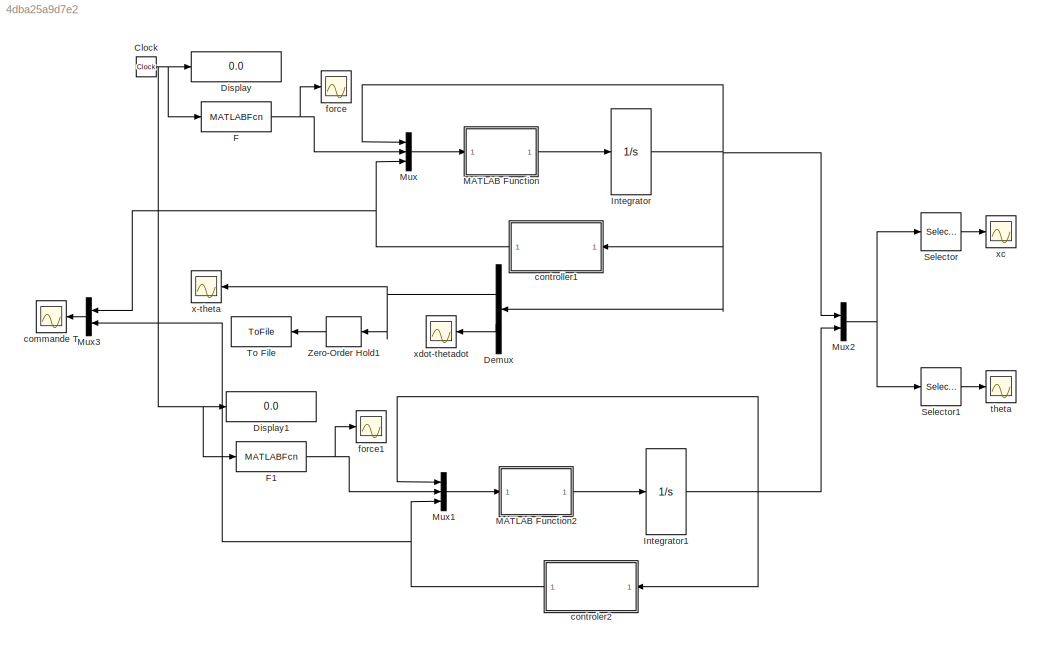
MODEL slx_4dba25a9d7e2
KIND model
CONFIG AbsTol = auto
CONFIG EnableMultiTasking = off
CONFIG FixedStep = auto
CONFIG MaxStep = auto
CONFIG MinStep = auto
CONFIG RelTol = 1e-3
CONFIG SampleTimeConstraint = Unconstrained
CONFIG SolverName = VariableStepAuto
CONFIG StartTime = 0.0
CONFIG StopTime = 50
BLOCK [Clock] Clock
BLOCK [Demux] Demux
  Outputs = 2
BLOCK [Display] Display
  Decimation = 1
BLOCK [Display] Display1
  Decimation = 1
BLOCK [MATLABFcn] F
  MATLABFcn = Force
  OutputDimensions = 1
BLOCK [MATLABFcn] F1
  MATLABFcn = Force1
  OutputDimensions = 1
BLOCK [Integrator] Integrator
  InitialCondition = [0.1;0;1e-8;0]
BLOCK [Integrator] Integrator1
  InitialCondition = [0.1;0;1e-8;0]
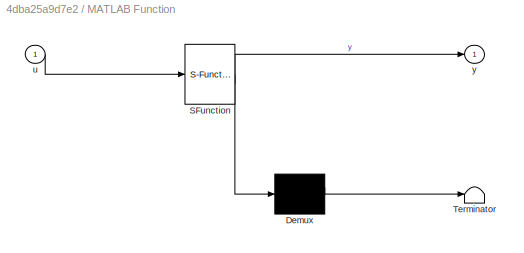
BLOCK [SubSystem] MATLAB Function
  ErrorFcn = Stateflow.Translate.translate
  PermitHierarchicalResolution = ExplicitOnly
  SFBlockType = MATLAB Function
  TreatAsAtomicUnit = on
BLOCK [Demux] MATLAB Function/ Demux 
  Outputs = 1
BLOCK [S-Function] MATLAB Function/ SFunction 
  EnableBusSupport = on
  FunctionName = sf_sfun
  PortCounts = [1 2]
  SFcnIsStateOwnerBlock = off
  SFunctionDeploymentMode = off
  Tag = Stateflow S-Function 2
BLOCK [Terminator] MATLAB Function/ Terminator 
BLOCK [Inport] MATLAB Function/u
BLOCK [Outport] MATLAB Function/y
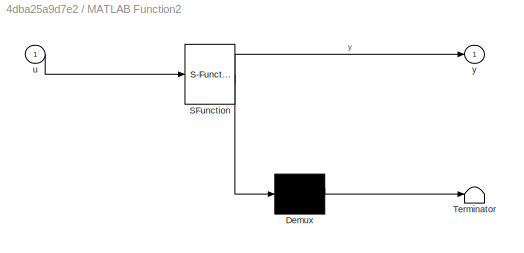
BLOCK [SubSystem] MATLAB Function2
  ErrorFcn = Stateflow.Translate.translate
  PermitHierarchicalResolution = ExplicitOnly
  SFBlockType = MATLAB Function
  TreatAsAtomicUnit = on
BLOCK [Demux] MATLAB Function2/ Demux 
  Outputs = 1
BLOCK [S-Function] MATLAB Function2/ SFunction 
  EnableBusSupport = on
  FunctionName = sf_sfun
  PortCounts = [1 2]
  SFcnIsStateOwnerBlock = off
  SFunctionDeploymentMode = off
  Tag = Stateflow S-Function 3
BLOCK [Terminator] MATLAB Function2/ Terminator 
BLOCK [Inport] MATLAB Function2/u
BLOCK [Outport] MATLAB Function2/y
BLOCK [Mux] Mux
  DisplayOption = bar
  Inputs = 3
BLOCK [Mux] Mux1
  DisplayOption = bar
  Inputs = 3
BLOCK [Mux] Mux2
  DisplayOption = bar
  Inputs = 2
BLOCK [Mux] Mux3
  DisplayOption = bar
  Inputs = 2
  NameLocation = top
BLOCK [Selector] Selector
  IndexOptions = Index vector (dialog)
  Indices = [1 5]
  InputPortWidth = 8
  OutputSizes = 1
BLOCK [Selector] Selector1
  IndexOptions = Index vector (dialog)
  Indices = [3 7]
  InputPortWidth = 8
  OutputSizes = 1
BLOCK [ToFile] To File
  Filename = xtheta.mat
  SampleTime = 0.01
  SaveFormat = Timeseries
BLOCK [ZeroOrderHold] Zero-Order Hold1
  SampleTime = 0.01
BLOCK [Scope] commande T
  Floating = off
  NameLocation = top
  NumInputPorts = 1
  ScopeSpecificationString = Simulink.scopes.TimeScopeBlockCfg('CurrentConfiguration', extmgr.ConfigurationSet(extmgr.Configuration('Core','General UI',true),extmgr.Configuration('Core','Source UI',true),extmgr.Configuration('Sources','WiredSimulink',true,'DataLoggingVariableName','ScopeData1'),extmgr.Configuration('Visuals','Time Domain',true,'SerializedDisplays',{struct('MinYLimReal','-39.91224','MaxYLimReal','68.37104','YL...<+1441ch>
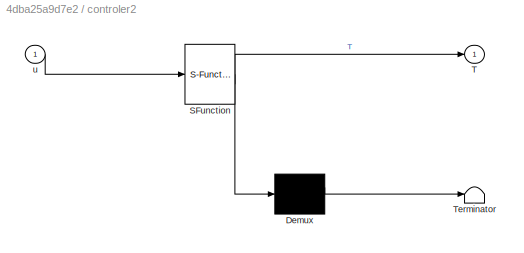
BLOCK [SubSystem] controler2
  ErrorFcn = Stateflow.Translate.translate
  PermitHierarchicalResolution = ExplicitOnly
  SFBlockType = MATLAB Function
  TreatAsAtomicUnit = on
BLOCK [Demux] controler2/ Demux 
  Outputs = 1
BLOCK [S-Function] controler2/ SFunction 
  EnableBusSupport = on
  FunctionName = sf_sfun
  PortCounts = [1 2]
  SFcnIsStateOwnerBlock = off
  SFunctionDeploymentMode = off
  Tag = Stateflow S-Function 4
BLOCK [Terminator] controler2/ Terminator 
BLOCK [Outport] controler2/T
BLOCK [Inport] controler2/u
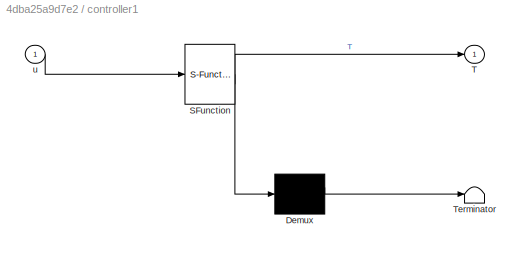
BLOCK [SubSystem] controller1
  ErrorFcn = Stateflow.Translate.translate
  PermitHierarchicalResolution = ExplicitOnly
  SFBlockType = MATLAB Function
  TreatAsAtomicUnit = on
BLOCK [Demux] controller1/ Demux 
  Outputs = 1
BLOCK [S-Function] controller1/ SFunction 
  EnableBusSupport = on
  FunctionName = sf_sfun
  PortCounts = [1 2]
  SFcnIsStateOwnerBlock = off
  SFunctionDeploymentMode = off
  Tag = Stateflow S-Function 1
BLOCK [Terminator] controller1/ Terminator 
BLOCK [Outport] controller1/T
BLOCK [Inport] controller1/u
BLOCK [Scope] force
  Floating = off
  NumInputPorts = 1
  ScopeSpecificationString = Simulink.scopes.TimeScopeBlockCfg('CurrentConfiguration', extmgr.ConfigurationSet(extmgr.Configuration('Core','General UI',true),extmgr.Configuration('Core','Source UI',true),extmgr.Configuration('Sources','WiredSimulink',true,'DataLoggingVariableName','ScopeData2'),extmgr.Configuration('Visuals','Time Domain',true,'SerializedDisplays',{struct('MinYLimReal','-1.00000','MaxYLimReal','1.00000','YLab...<+1389ch>
BLOCK [Scope] force1
  Floating = off
  NumInputPorts = 1
  ScopeSpecificationString = Simulink.scopes.TimeScopeBlockCfg('CurrentConfiguration', extmgr.ConfigurationSet(extmgr.Configuration('Core','General UI',true),extmgr.Configuration('Core','Source UI',true),extmgr.Configuration('Sources','WiredSimulink',true,'DataLoggingVariableName','ScopeData5'),extmgr.Configuration('Visuals','Time Domain',true,'SerializedDisplays',{struct('MinYLimReal','-1.00000','MaxYLimReal','1.00000','YLab...<+1389ch>
BLOCK [Scope] theta
  Floating = off
  NumInputPorts = 1
  ScopeSpecificationString = Simulink.scopes.TimeScopeBlockCfg('CurrentConfiguration', extmgr.ConfigurationSet(extmgr.Configuration('Core','General UI',true),extmgr.Configuration('Core','Source UI',true),extmgr.Configuration('Sources','WiredSimulink',true,'DataLoggingVariableName','ScopeData2'),extmgr.Configuration('Visuals','Time Domain',true,'SerializedDisplays',{struct('MinYLimReal','-2.58077','MaxYLimReal','2.59196','YLab...<+1507ch>
BLOCK [Scope] x-theta
  Floating = off
  NumInputPorts = 1
  ScopeSpecificationString = Simulink.scopes.TimeScopeBlockCfg('CurrentConfiguration', extmgr.ConfigurationSet(extmgr.Configuration('Core','General UI',true),extmgr.Configuration('Core','Source UI',true),extmgr.Configuration('Sources','WiredSimulink',true),extmgr.Configuration('Visuals','Time Domain',true,'SerializedDisplays',{struct('MinYLimReal','-1467.37748','MaxYLimReal','11481.01727','YLabelReal','','MinYLimMag','  0.000...<+1437ch>
BLOCK [Scope] xc
  Floating = off
  NumInputPorts = 1
  ScopeSpecificationString = Simulink.scopes.TimeScopeBlockCfg('CurrentConfiguration', extmgr.ConfigurationSet(extmgr.Configuration('Core','General UI',true),extmgr.Configuration('Core','Source UI',true),extmgr.Configuration('Sources','WiredSimulink',true,'DataLoggingVariableName','ScopeData1'),extmgr.Configuration('Visuals','Time Domain',true,'SerializedDisplays',{struct('MinYLimReal','-0.09627','MaxYLimReal','0.12181','YLab...<+1508ch>
BLOCK [Scope] xdot-thetadot
  Floating = off
  NumInputPorts = 1
  ScopeSpecificationString = Simulink.scopes.TimeScopeBlockCfg('CurrentConfiguration', extmgr.ConfigurationSet(extmgr.Configuration('Core','General UI',true),extmgr.Configuration('Core','Source UI',true),extmgr.Configuration('Sources','WiredSimulink',true,'DataLoggingVariableName','ScopeData1'),extmgr.Configuration('Visuals','Time Domain',true,'SerializedDisplays',{struct('MinYLimReal','-0.64492','MaxYLimReal','1.9693','YLabe...<+1453ch>
NET Clock:1 -> Display1:1, Display:1, F1:1, F:1
NET Demux:1 -> Zero-Order Hold1:1, x-theta:1
LINE Demux:2 -> xdot-thetadot:1
NET F1:1 -> Mux1:2, force1:1
NET F:1 -> Mux:2, force:1
NET Integrator1:1 -> Mux1:1, Mux2:2, controler2:1
NET Integrator:1 -> Demux:1, Mux2:1, Mux:1, controller1:1
LINE MATLAB Function2:1 -> Integrator1:1
LINE MATLAB Function:1 -> Integrator:1
LINE Mux1:1 -> MATLAB Function2:1
NET Mux2:1 -> Selector1:1, Selector:1
LINE Mux3:1 -> commande T:1
LINE Mux:1 -> MATLAB Function:1
LINE Selector1:1 -> theta:1
LINE Selector:1 -> xc:1
LINE Zero-Order Hold1:1 -> To File:1
NET controler2:1 -> Mux1:3, Mux3:2
NET controller1:1 -> Mux3:1, Mux:3
note: NET lines group one-source signal fan-out (src -> all destinations, sorted); 1:1 wires keep LINE
CHART MATLAB Function states=1 transitions=1
  STATE_LABEL 'eML_blk_kernel()'
  STATE_LABEL "SCRIPT:\nfunction y = dynamique(u)\n% fonction définissant la dynamique du système: renvoie f(X,U) avec X\n% l'état, et U la variable de commande physique (composante T de la force\n% appliquée au chariot)\n\nx= u(1); %position du chariot\nxdot= u(2); %inclinaison de la barre\ntheta= u(3); % vitesse du chariot\nthetadot= u(4); % vitesse angulaire de la barre\nF=u(5);\nT= u(6); % force appliquée au chariot\n\n%...<+1003ch>"
CHART MATLAB Function2 states=1 transitions=1
  STATE_LABEL 'eML_blk_kernel()'
  STATE_LABEL "SCRIPT:\nfunction y = dynamique(u)\n% fonction définissant la dynamique du système: renvoie f(X,U) avec X\n% l'état, et U la variable de commande physique (composante T de la force\n% appliquée au chariot)\n\nx= u(1); %position du chariot\nxdot= u(2); %inclinaison de la barre\ntheta= u(3); % vitesse du chariot\nthetadot= u(4); % vitesse angulaire de la barre\nF=u(5);\nT= u(6); % force appliquée au chariot\n\n%...<+1003ch>"
CHART controler2 states=1 transitions=1
  STATE_LABEL 'eML_blk_kernel()'
  STATE_LABEL 'SCRIPT:\nfunction T = commande(u)\n% Fonction qui calcule la commande T\n\n% Définition des états\nx= u(1);\nxdot= u(2);\ntheta= u(3);\nthetadot=u(4);\n\n% Definition des paramètres du système\nm= 0.2; % masse de la barre\nM= 1; % masse chariot\nl= 0.2; % demi-longueur de la barre\nJ=  m*l^2/3; % inertie de la barre\ng= 9.81; % cste de gravité\nk=180; %raideur de ressort\n\n%definir changement de varriable \nxd=sqrt...<+1159ch>'
CHART controller1 states=1 transitions=1
  STATE_LABEL 'eML_blk_kernel()'
  STATE_LABEL 'SCRIPT:\nfunction T = commande(u)\n% Fonction qui calcule la commande T\n\n% Définition des états\nx= u(1);\nxdot= u(2);\ntheta= u(3);\nthetadot=u(4);\n\n% Definition des paramètres du système\nm= 0.2; % masse de la barre\nM= 1; % masse chariot\nl= 0.2; % demi-longueur de la barre\nJ=  m*l^2/3; % inertie de la barre\ng= 9.81; % cste de gravité\nk=180; %raideur de ressort\n\n%definir changement de varriable \nxd=sqrt...<+1166ch>'
CHART  states=0 transitions=0
CHART  states=0 transitions=0
CHART  states=0 transitions=0
CHART  states=0 transitions=0
